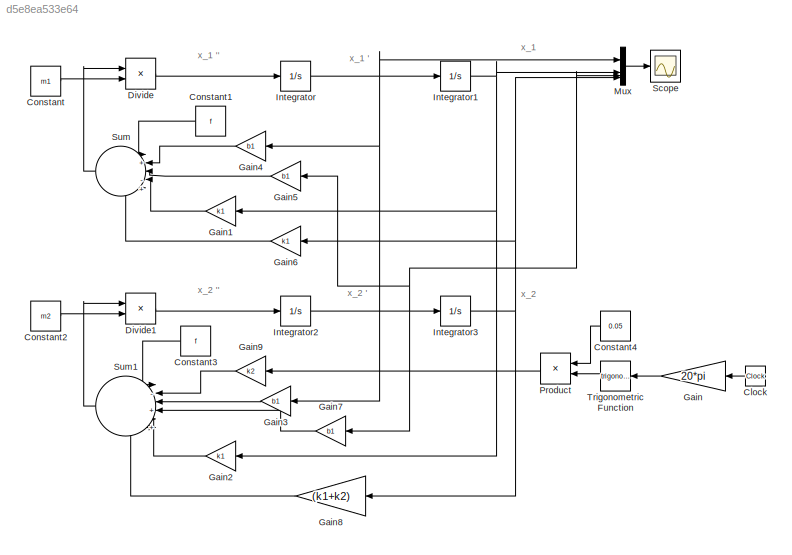
MODEL slx_d5e8ea533e64
KIND model
CONFIG AbsTol = auto
CONFIG EnableMultiTasking = off
CONFIG FixedStep = auto
CONFIG InitFcn = m1 = 290;\nm2 = 59;\nb1 = 1000;\nk1 = 16182;\nk2 = 19000;\nf = 0;\n\n
CONFIG MaxStep = 0.01
CONFIG MinStep = auto
CONFIG RelTol = 1e-3
CONFIG SampleTimeConstraint = Unconstrained
CONFIG SolverName = VariableStepAuto
CONFIG StartTime = 0.0
CONFIG StopTime = 5
BLOCK [Clock] Clock
  NameLocation = top
BLOCK [Constant] Constant
  Value = m1
BLOCK [Constant] Constant1
  NameLocation = top
  Value = f
BLOCK [Constant] Constant2
  Value = m2
BLOCK [Constant] Constant3
  NameLocation = top
  Value = f
BLOCK [Constant] Constant4
  NameLocation = top
  Value = 0.05
BLOCK [Product] Divide
  Inputs = */
BLOCK [Product] Divide1
  Inputs = */
BLOCK [Gain] Gain
  Gain = 20*pi
  NameLocation = top
BLOCK [Gain] Gain1
  Gain = k1
  NameLocation = top
BLOCK [Gain] Gain2
  Gain = k1
  NameLocation = top
BLOCK [Gain] Gain3
  Gain = b1
  NameLocation = top
BLOCK [Gain] Gain4
  Gain = b1
  NameLocation = top
BLOCK [Gain] Gain5
  Gain = b1
  NameLocation = top
BLOCK [Gain] Gain6
  Gain = k1
  NameLocation = top
BLOCK [Gain] Gain7
  Gain = b1
  NameLocation = top
BLOCK [Gain] Gain8
  Gain = (k1+k2)
  NameLocation = top
BLOCK [Gain] Gain9
  Gain = k2
  NameLocation = top
BLOCK [Integrator] Integrator
BLOCK [Integrator] Integrator1
BLOCK [Integrator] Integrator2
BLOCK [Integrator] Integrator3
BLOCK [Mux] Mux
  DisplayOption = bar
BLOCK [Product] Product
  NameLocation = top
BLOCK [Scope] Scope
  Floating = off
  NumInputPorts = 1
  ScopeSpecificationString = Simulink.scopes.TimeScopeBlockCfg('CurrentConfiguration', extmgr.ConfigurationSet(extmgr.Configuration('Core','General UI',true),extmgr.Configuration('Core','Source UI',true),extmgr.Configuration('Sources','WiredSimulink',true),extmgr.Configuration('Visuals','Time Domain',true,'SerializedDisplays',{struct('MinYLimReal','-0.44567','MaxYLimReal','0.40379','YLabelReal','','MinYLimMag','0.00000','MaxY...<+1491ch>
BLOCK [Sum] Sum
  Inputs = |+|-|+|-|+
  NameLocation = top
BLOCK [Sum] Sum1
  Inputs = |-|+|+|-|+|-
  NameLocation = top
BLOCK [Trigonometry] Trigonometric Function
  NameLocation = top
ANNOTATION (root): x_1
ANNOTATION (root): x_1 '
ANNOTATION (root): x_1 ''
ANNOTATION (root): x_2
ANNOTATION (root): x_2 '
ANNOTATION (root): x_2 ''
LINE Clock:1 -> Gain:1
LINE Constant1:1 -> Sum:1
LINE Constant2:1 -> Divide1:2
LINE Constant3:1 -> Sum1:1
LINE Constant4:1 -> Product:1
LINE Constant:1 -> Divide:2
LINE Divide1:1 -> Integrator2:1
LINE Divide:1 -> Integrator:1
LINE Gain1:1 -> Sum:4
LINE Gain2:1 -> Sum1:5
LINE Gain3:1 -> Sum1:3
LINE Gain4:1 -> Sum:2
LINE Gain5:1 -> Sum:3
LINE Gain6:1 -> Sum:5
LINE Gain7:1 -> Sum1:4
LINE Gain8:1 -> Sum1:6
LINE Gain9:1 -> Sum1:2
LINE Gain:1 -> Trigonometric Function:1
NET Integrator1:1 -> Gain1:1, Gain2:1, Mux:2
NET Integrator2:1 -> Gain5:1, Gain7:1, Integrator3:1, Mux:3
NET Integrator3:1 -> Gain6:1, Gain8:1, Mux:4
NET Integrator:1 -> Gain3:1, Gain4:1, Integrator1:1, Mux:1
LINE Mux:1 -> Scope:1
LINE Product:1 -> Gain9:1
LINE Sum1:1 -> Divide1:1
LINE Sum:1 -> Divide:1
LINE Trigonometric Function:1 -> Product:2
note: NET lines group one-source signal fan-out (src -> all destinations, sorted); 1:1 wires keep LINE
